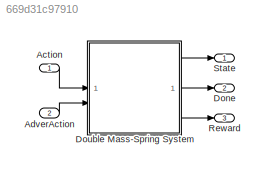
MODEL slx_669d31c97910
KIND model
CONFIG AbsTol = auto
CONFIG EnableMultiTasking = off
CONFIG FixedStep = auto
CONFIG MaxStep = auto
CONFIG MinStep = auto
CONFIG RelTol = 1e-3
CONFIG SampleTimeConstraint = Unconstrained
CONFIG SolverName = FixedStepAuto
CONFIG StartTime = 0.0
CONFIG StopTime = 10.0
WORKSPACE source: mxarray member
WORKSPACE a_max = 10
WORKSPACE a_min = -10
WORKSPACE adva_max = [0.001 0.001 0.001 0.001]
WORKSPACE adva_min = [-0.001 -0.001 -0.001 -0.001]
WORKSPACE ka = 50
WORKSPACE m1 = 10
WORKSPACE m2 = 10
WORKSPACE x_ini: Simulink.Parameter (value not decoded)
BLOCK [Inport] Action
BLOCK [Inport] AdverAction
  Port = 2
BLOCK [Outport] Done
  Port = 2
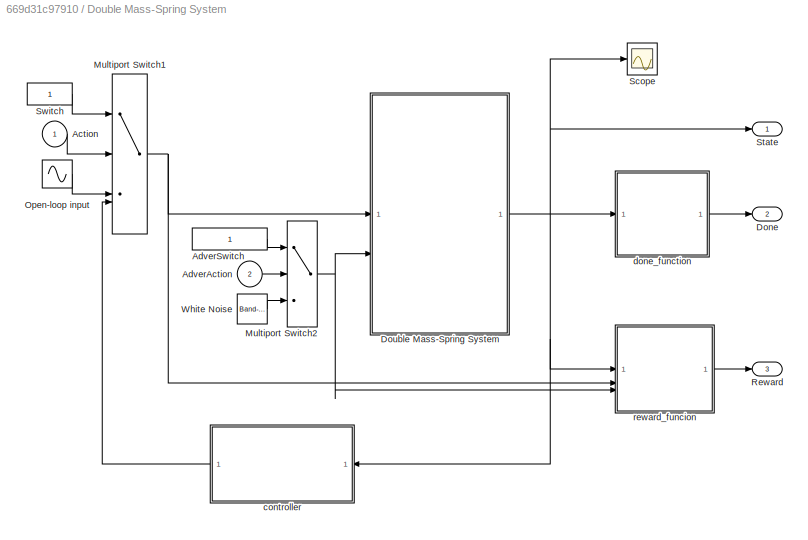
BLOCK [SubSystem] Double Mass-Spring System
BLOCK [Inport] Double Mass-Spring System/Action
BLOCK [Inport] Double Mass-Spring System/AdverAction
  Port = 2
BLOCK [Constant] Double Mass-Spring System/AdverSwitch
BLOCK [Outport] Double Mass-Spring System/Done
  Port = 2
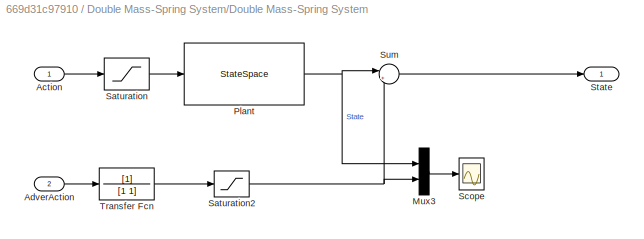
BLOCK [SubSystem] Double Mass-Spring System/Double Mass-Spring System
BLOCK [Inport] Double Mass-Spring System/Double Mass-Spring System/Action
BLOCK [Inport] Double Mass-Spring System/Double Mass-Spring System/AdverAction
  Port = 2
BLOCK [Mux] Double Mass-Spring System/Double Mass-Spring System/Mux3
  DisplayOption = bar
  Inputs = 2
BLOCK [StateSpace] Double Mass-Spring System/Double Mass-Spring System/Plant
  A = [0 1 0 0; -ka/m1 0 ka/m1 0; 0 0 0 1;ka/m2 0 -ka/m2 0]
  B = [0; 1; 0; 0]
  C = [1 0 0 0;0 1 0 0;0 0 1 0;0 0 0 1]
  D = zeros(4,1)
  InitialCondition = x_ini
BLOCK [Saturate] Double Mass-Spring System/Double Mass-Spring System/Saturation
  LowerLimit = a_min
  UpperLimit = a_max
BLOCK [Saturate] Double Mass-Spring System/Double Mass-Spring System/Saturation2
  LowerLimit = adva_min
  UpperLimit = adva_max
BLOCK [Scope] Double Mass-Spring System/Double Mass-Spring System/Scope
  Floating = off
  NumInputPorts = 1
  ScopeSpecificationString = Simulink.scopes.TimeScopeBlockCfg('CurrentConfiguration', extmgr.ConfigurationSet(extmgr.Configuration('Core','General UI',true),extmgr.Configuration('Core','Source UI',true),extmgr.Configuration('Sources','WiredSimulink',true,'DataLoggingVariableName','ScopeData1'),extmgr.Configuration('Visuals','Time Domain',true,'SerializedDisplays',{struct('MinYLimReal','-1.08512','MaxYLimReal','6.12465','YLab...<+1414ch>
BLOCK [Outport] Double Mass-Spring System/Double Mass-Spring System/State
BLOCK [Sum] Double Mass-Spring System/Double Mass-Spring System/Sum
  Inputs = |++
BLOCK [TransferFcn] Double Mass-Spring System/Double Mass-Spring System/Transfer Fcn
  Denominator = [1 1]
BLOCK [MultiPortSwitch] Double Mass-Spring System/Multiport Switch1
  InputSameDT = off
  SaturateOnIntegerOverflow = off
BLOCK [MultiPortSwitch] Double Mass-Spring System/Multiport Switch2
  InputSameDT = off
  Inputs = 2
  SaturateOnIntegerOverflow = off
BLOCK [Sin] Double Mass-Spring System/Open-loop input
  Commented = on
  SampleTime = 0
BLOCK [Outport] Double Mass-Spring System/Reward
  Port = 3
BLOCK [Scope] Double Mass-Spring System/Scope
  Floating = off
  NumInputPorts = 1
  ScopeSpecificationString = Simulink.scopes.TimeScopeBlockCfg('CurrentConfiguration', extmgr.ConfigurationSet(extmgr.Configuration('Core','General UI',true),extmgr.Configuration('Core','Source UI',true),extmgr.Configuration('Sources','WiredSimulink',true),extmgr.Configuration('Visuals','Time Domain',true,'SerializedDisplays',{struct('MinYLimReal','-1.08512','MaxYLimReal','6.12465','YLabelReal','','MinYLimMag','0.00000','MaxY...<+1466ch>
BLOCK [Outport] Double Mass-Spring System/State
BLOCK [Constant] Double Mass-Spring System/Switch
BLOCK [Reference] Double Mass-Spring System/White Noise  REF=simulink/Sources/Band-Limited
White Noise
  Commented = on
  SourceBlock = simulink/Sources/Band-Limited\nWhite Noise
  SourceType = Band-Limited White Noise.
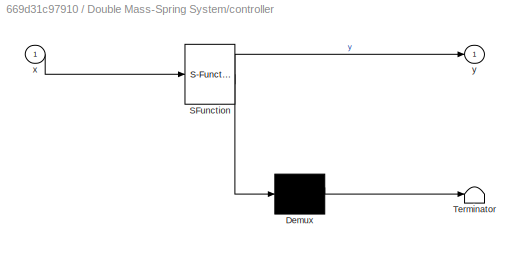
BLOCK [SubSystem] Double Mass-Spring System/controller
  Commented = on
  ErrorFcn = Stateflow.Translate.translate
  PermitHierarchicalResolution = ExplicitOnly
  SFBlockType = MATLAB Function
  TreatAsAtomicUnit = on
BLOCK [Demux] Double Mass-Spring System/controller/ Demux 
  Outputs = 1
BLOCK [S-Function] Double Mass-Spring System/controller/ SFunction 
  EnableBusSupport = on
  FunctionName = sf_sfun
  PortCounts = [1 2]
  SFcnIsStateOwnerBlock = off
  SFunctionDeploymentMode = off
  Tag = Stateflow S-Function 2
BLOCK [Terminator] Double Mass-Spring System/controller/ Terminator 
BLOCK [Inport] Double Mass-Spring System/controller/x
BLOCK [Outport] Double Mass-Spring System/controller/y
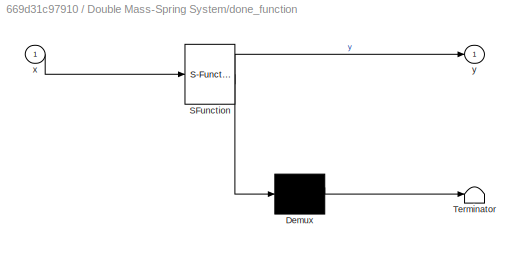
BLOCK [SubSystem] Double Mass-Spring System/done_function
  ErrorFcn = Stateflow.Translate.translate
  PermitHierarchicalResolution = ExplicitOnly
  SFBlockType = MATLAB Function
  TreatAsAtomicUnit = on
BLOCK [Demux] Double Mass-Spring System/done_function/ Demux 
  Outputs = 1
BLOCK [S-Function] Double Mass-Spring System/done_function/ SFunction 
  EnableBusSupport = on
  FunctionName = sf_sfun
  PortCounts = [1 2]
  SFcnIsStateOwnerBlock = off
  SFunctionDeploymentMode = off
  Tag = Stateflow S-Function 4
BLOCK [Terminator] Double Mass-Spring System/done_function/ Terminator 
BLOCK [Inport] Double Mass-Spring System/done_function/x
BLOCK [Outport] Double Mass-Spring System/done_function/y
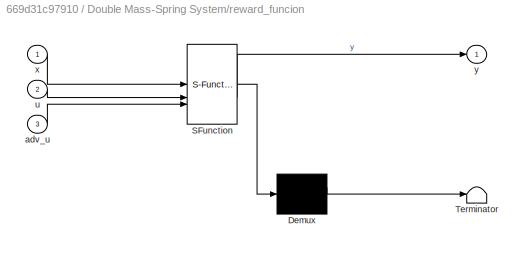
BLOCK [SubSystem] Double Mass-Spring System/reward_funcion
  ErrorFcn = Stateflow.Translate.translate
  PermitHierarchicalResolution = ExplicitOnly
  SFBlockType = MATLAB Function
  TreatAsAtomicUnit = on
BLOCK [Demux] Double Mass-Spring System/reward_funcion/ Demux 
  Outputs = 1
BLOCK [S-Function] Double Mass-Spring System/reward_funcion/ SFunction 
  EnableBusSupport = on
  FunctionName = sf_sfun
  PortCounts = [3 2]
  SFcnIsStateOwnerBlock = off
  SFunctionDeploymentMode = off
  Tag = Stateflow S-Function 5
BLOCK [Terminator] Double Mass-Spring System/reward_funcion/ Terminator 
BLOCK [Inport] Double Mass-Spring System/reward_funcion/adv_u
  Port = 3
BLOCK [Inport] Double Mass-Spring System/reward_funcion/u
  Port = 2
BLOCK [Inport] Double Mass-Spring System/reward_funcion/x
BLOCK [Outport] Double Mass-Spring System/reward_funcion/y
BLOCK [Outport] Reward
  Port = 3
BLOCK [Outport] State
LINE Action:1 -> Double Mass-Spring System:1
LINE AdverAction:1 -> Double Mass-Spring System:2
LINE Double Mass-Spring System/Action:1 -> Double Mass-Spring System/Multiport Switch1:2
LINE Double Mass-Spring System/AdverAction:1 -> Double Mass-Spring System/Multiport Switch2:2
LINE Double Mass-Spring System/AdverSwitch:1 -> Double Mass-Spring System/Multiport Switch2:1
LINE Double Mass-Spring System/Double Mass-Spring System/Action:1 -> Double Mass-Spring System/Double Mass-Spring System/Saturation:1
LINE Double Mass-Spring System/Double Mass-Spring System/AdverAction:1 -> Double Mass-Spring System/Double Mass-Spring System/Transfer Fcn:1
LINE Double Mass-Spring System/Double Mass-Spring System/Mux3:1 -> Double Mass-Spring System/Double Mass-Spring System/Scope:1
NET Double Mass-Spring System/Double Mass-Spring System/Plant:1 -> Double Mass-Spring System/Double Mass-Spring System/Mux3:1, Double Mass-Spring System/Double Mass-Spring System/Sum:1
NET Double Mass-Spring System/Double Mass-Spring System/Saturation2:1 -> Double Mass-Spring System/Double Mass-Spring System/Mux3:2, Double Mass-Spring System/Double Mass-Spring System/Sum:2
LINE Double Mass-Spring System/Double Mass-Spring System/Saturation:1 -> Double Mass-Spring System/Double Mass-Spring System/Plant:1
LINE Double Mass-Spring System/Double Mass-Spring System/Sum:1 -> Double Mass-Spring System/Double Mass-Spring System/State:1
LINE Double Mass-Spring System/Double Mass-Spring System/Transfer Fcn:1 -> Double Mass-Spring System/Double Mass-Spring System/Saturation2:1
NET Double Mass-Spring System/Double Mass-Spring System:1 -> Double Mass-Spring System/Scope:1, Double Mass-Spring System/State:1, Double Mass-Spring System/controller:1, Double Mass-Spring System/done_function:1, Double Mass-Spring System/reward_funcion:1
NET Double Mass-Spring System/Multiport Switch1:1 -> Double Mass-Spring System/Double Mass-Spring System:1, Double Mass-Spring System/reward_funcion:2
NET Double Mass-Spring System/Multiport Switch2:1 -> Double Mass-Spring System/Double Mass-Spring System:2, Double Mass-Spring System/reward_funcion:3
LINE Double Mass-Spring System/Open-loop input:1 -> Double Mass-Spring System/Multiport Switch1:3
LINE Double Mass-Spring System/Switch:1 -> Double Mass-Spring System/Multiport Switch1:1
LINE Double Mass-Spring System/White Noise:1 -> Double Mass-Spring System/Multiport Switch2:3
LINE Double Mass-Spring System/controller:1 -> Double Mass-Spring System/Multiport Switch1:4
LINE Double Mass-Spring System/done_function:1 -> Double Mass-Spring System/Done:1
LINE Double Mass-Spring System/reward_funcion:1 -> Double Mass-Spring System/Reward:1
LINE Double Mass-Spring System:1 -> State:1
LINE Double Mass-Spring System:2 -> Done:1
LINE Double Mass-Spring System:3 -> Reward:1
note: NET lines group one-source signal fan-out (src -> all destinations, sorted); 1:1 wires keep LINE
CHART Double Mass-Spring System/controller states=1 transitions=1
  STATE_LABEL 'eML_blk_kernel()'
  STATE_LABEL 'SCRIPT:\nfunction y = fcn(x)\ndone = (abs(x(1)) > 2.4)||(abs(x(3)) > 0.2094);\ny = done;'
CHART Double Mass-Spring System/done_function states=1 transitions=1
  STATE_LABEL 'eML_blk_kernel()'
  STATE_LABEL 'SCRIPT:\nfunction y = fcn(x)\ndone = (  (abs(x(3))>5) || ((abs(x(3)-0)<0.01) && (abs(x(4))<0.01)) || (x(3)>x(1))  );\ny = done;\n'
CHART Double Mass-Spring System/reward_funcion states=1 transitions=1
  STATE_LABEL 'eML_blk_kernel()'
  STATE_LABEL 'SCRIPT:\nfunction y = fcn(x, u, adv_u)\nreward = -(x(3)-0)^2-5*(x(4)-0)^2-0.2*u^2;\ny = reward;\n'
CHART  states=0 transitions=0
CHART  states=0 transitions=0
CHART  states=0 transitions=0
